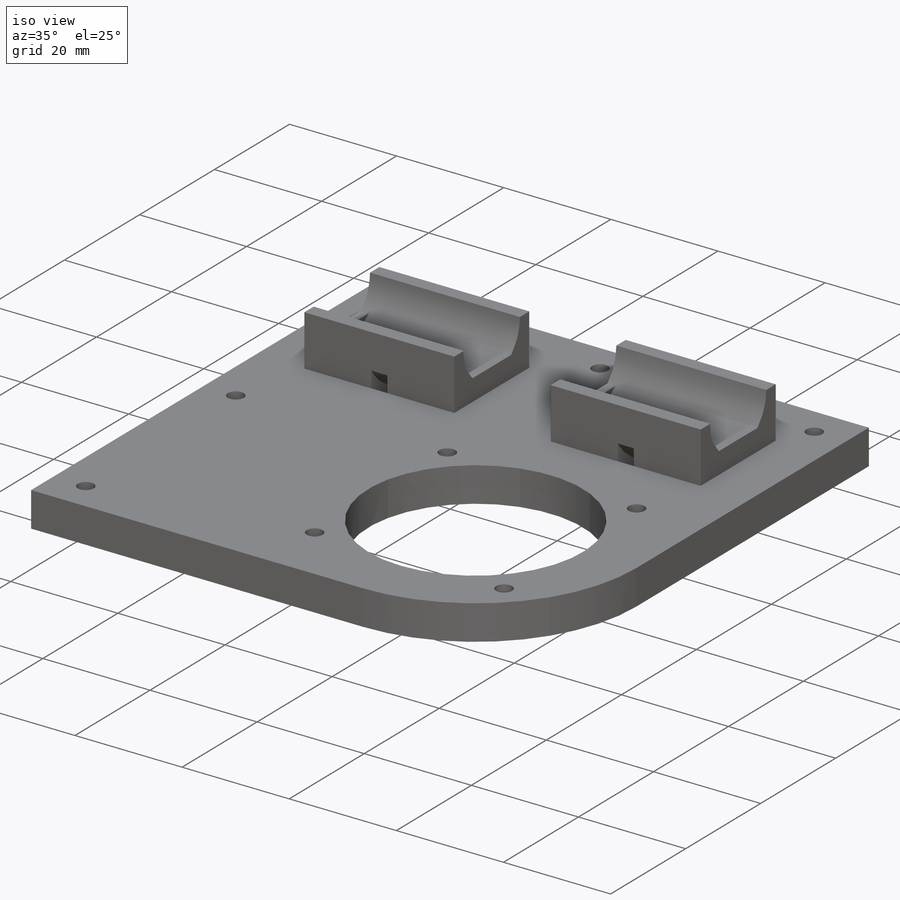
[diagram: iso view]
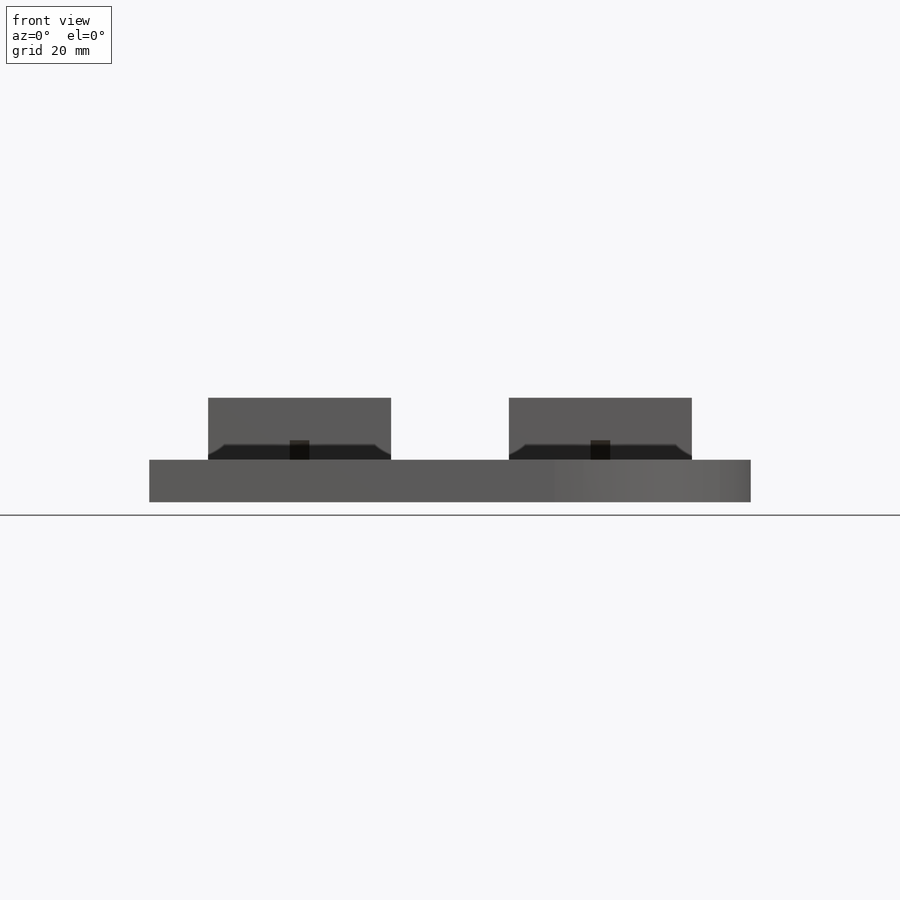
[diagram: front view]
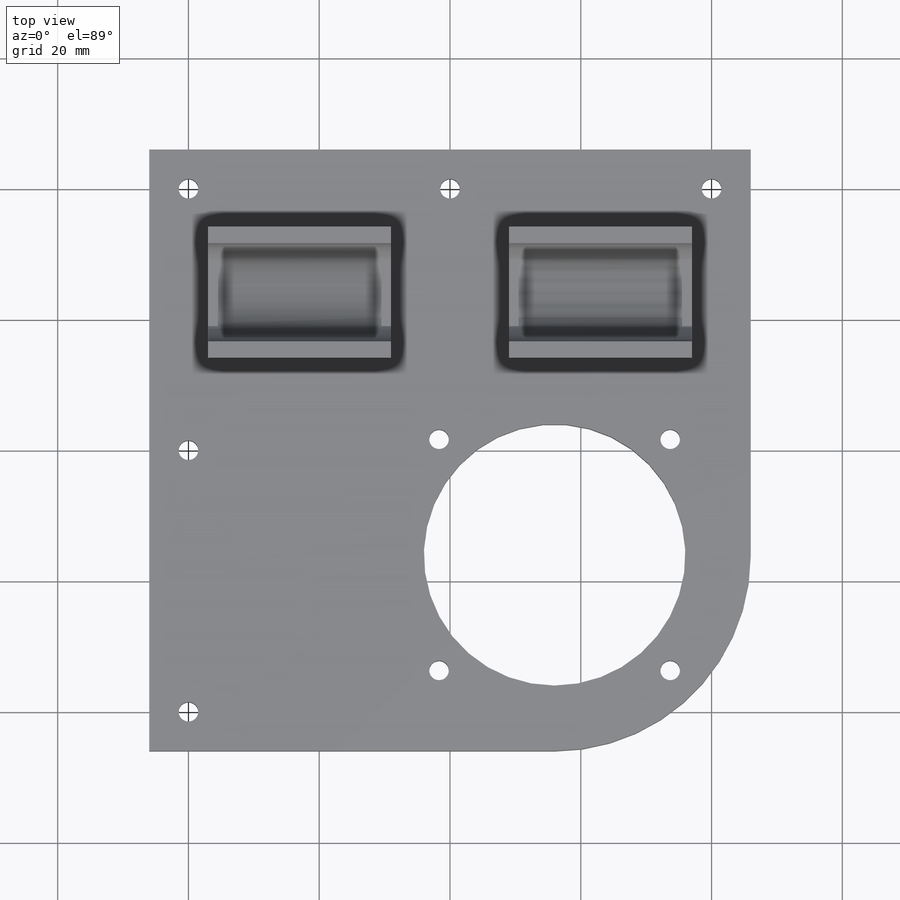
[diagram: top view]
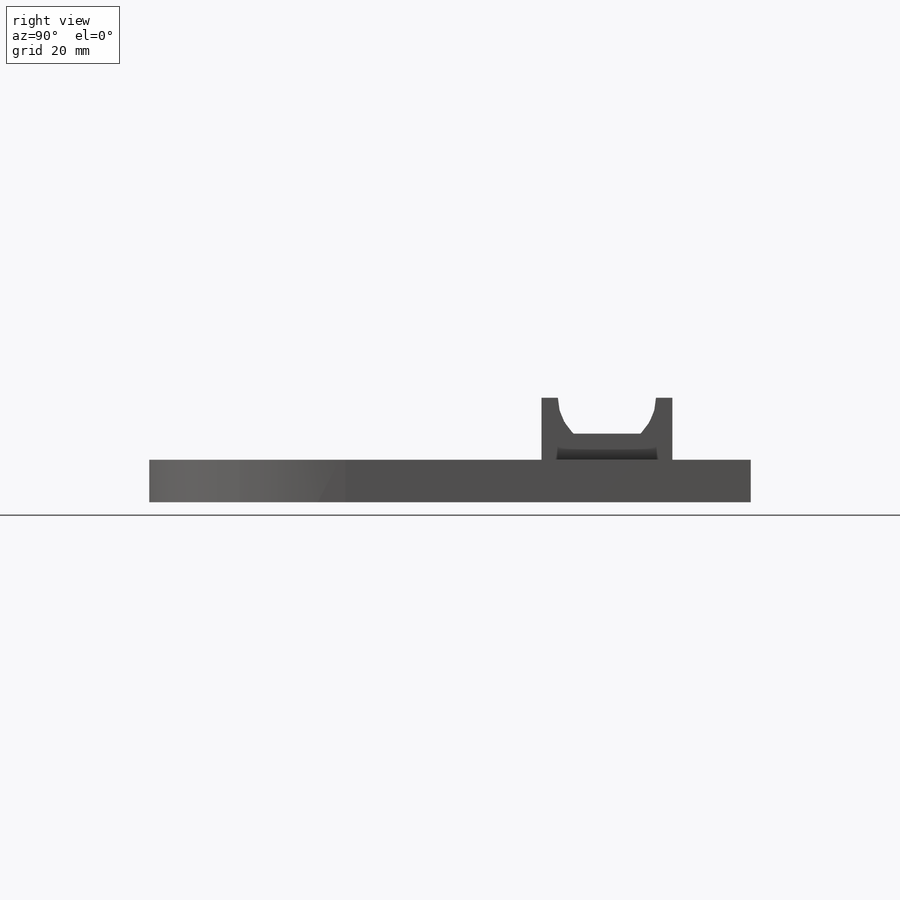
[diagram: right view]
SOLIDWORKS PART (.sldprt)
format: sldprt  version: not decoded by parser v0  size: 283,136 bytes
history: native  units: mm
features: sketch x11, cut_extrude x4, plane x4, extrude x3, sweep x2, material x1 (+16 scaffold rows collapsed)
feature tree (41):
  scaffold x16  (default folders/planes/origin — collapsed)
  material  "Material <not specified>"
  sketch  "Sketch7"  dims[c1.D1=~2.236626mm c2.D1=45.0deg]
  extrude  "Extrude2"  Depth=4mm
  sketch  "Sketch8"  dims[D1=28.0mm]
  extrude  "Extrude3"  Depth=9.5mm
  sketch  "Sketch10"  dims[D1=1.5mm]
  cut_extrude  "Extrude6"  Depth=28mm
  plane  "Plane3"  Offset=1.5mm
  sketch  "Sketch15"  dims[D1=~2.901637mm]
  cut_extrude  "Extrude7"  Depth=25mm
  sketch  "Sketch16"
  plane  "Plane4"  Offset=14mm
  sketch  "Sketch17"
  sweep  "Cut-Sweep1"
  extrude  "Extrude8"  [1 undecoded]
  sketch  "Sketch8<4>"  dims[D1=9.5mm]
  sketch  "Sketch18"  dims[D1=4.0mm]
  cut_extrude  "Extrude9"  Depth=28mm
  plane  "Plane5"  Offset=1.5mm
  sketch  "Sketch19"  dims[D1=~8.263638mm]
  cut_extrude  "Extrude10"  Depth=25mm
  sketch  "Sketch20"  dims[D1=3.0mm]
  plane  "Plane6"  Offset=14mm
  sketch  "Sketch21"
  sweep  "Cut-Sweep2"
decode coverage: 14 of 20 modeling features carry decoded parameters
note: ~ marks probable driven/reference dimensions
note: 1 parameter value undecoded
note: suppression state not decoded; provenance and decode notes live in map.json
